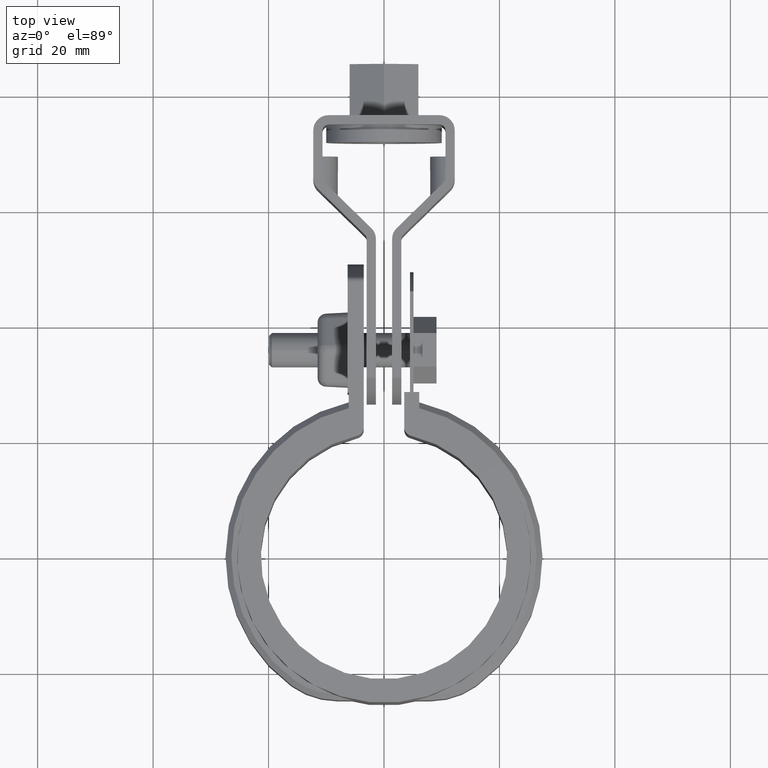
[diagram: clean part render]
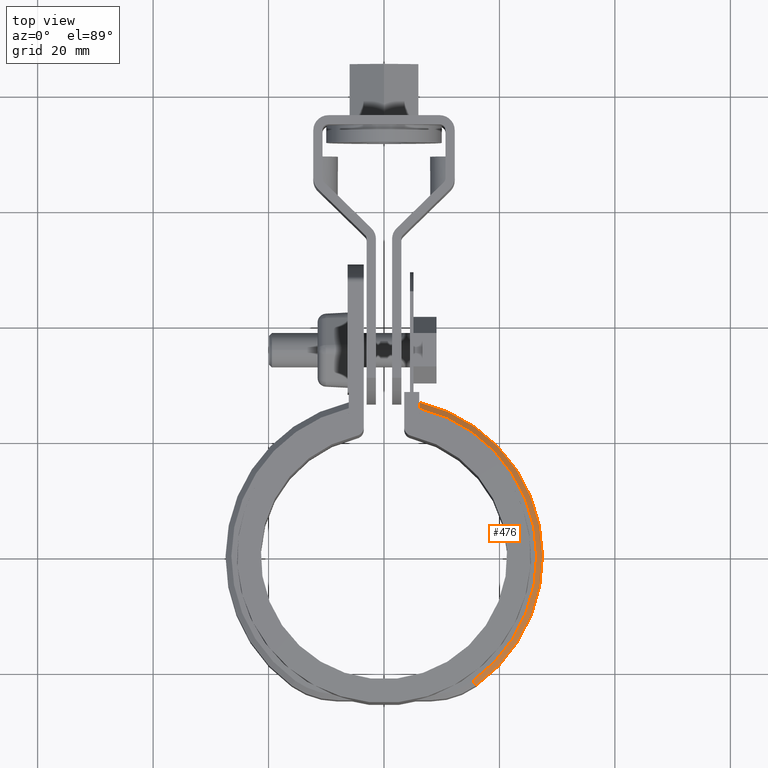
[diagram: same view with one face highlighted and labeled with its STEP entity id]
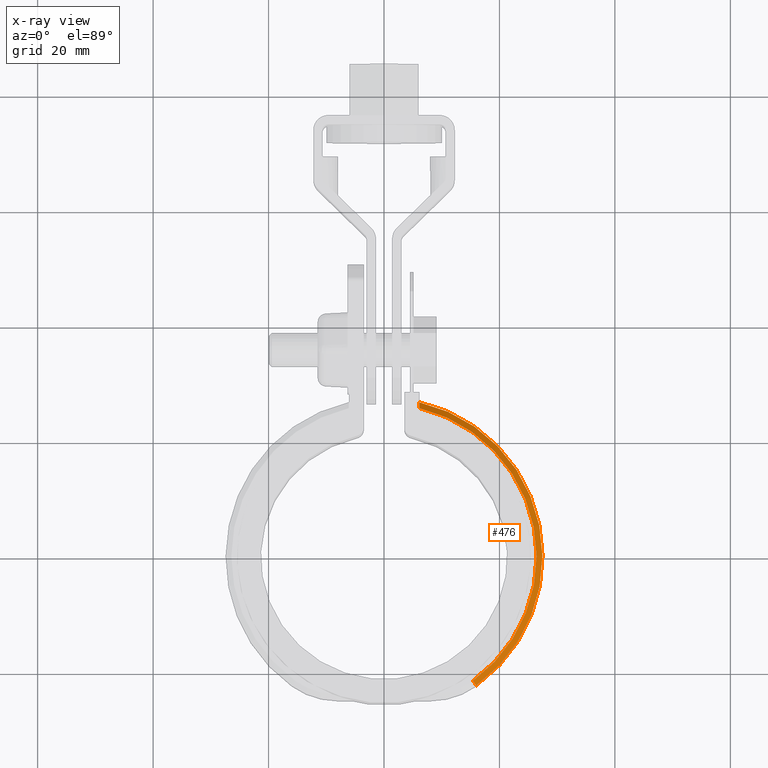
[diagram: x-ray of the same camera — body ghosted, the highlighted face saturated]
A machine part, top view. The second image highlights one B-rep face of the part: STEP entity #476.
The next image is the same camera in x-ray: the body ghosted, the highlighted face saturated — about 0% of this face is hidden behind the body in this view.
In plain terms, the highlighted conical surface has half-angle 45 deg.
Its self-contained STEP definition (entity closure, byte-faithful):
#476 = ADVANCED_FACE( '', ( #961 ), #962, .T. );
#961 = FACE_OUTER_BOUND( '', #2102, .T. );
#962 = CONICAL_SURFACE( '', #2103, 27.4450000000000, 0.785398163397448 );
#2102 = EDGE_LOOP( '', ( #4904, #4905, #4906, #4907 ) );
#2103 = AXIS2_PLACEMENT_3D( '', #4908, #4909, #4910 );
#4904 = ORIENTED_EDGE( '', *, *, #7369, .F. );
#4905 = ORIENTED_EDGE( '', *, *, #7399, .F. );
#4906 = ORIENTED_EDGE( '', *, *, #7346, .F. );
#4907 = ORIENTED_EDGE( '', *, *, #7397, .F. );
#4908 = CARTESIAN_POINT( '', ( -8.67361737988404E-016, -3.46944695195361E-015, -6.00000000000000 ) );
#4909 = DIRECTION( '', ( 0.000000000000000, 0.000000000000000, -1.00000000000000 ) );
#4910 = DIRECTION( '', ( -1.00000000000000, 0.000000000000000, 0.000000000000000 ) );
#7346 = EDGE_CURVE( '', #8557, #8559, #8560, .T. );
#7369 = EDGE_CURVE( '', #8599, #8601, #8602, .T. );
#7397 = EDGE_CURVE( '', #8601, #8557, #8643, .F. );
#7399 = EDGE_CURVE( '', #8559, #8599, #8645, .T. );
#8557 = VERTEX_POINT( '', #12750 );
#8559 = VERTEX_POINT( '', #12752 );
#8560 = LINE( '', #12753, #12754 );
#8599 = VERTEX_POINT( '', #12812 );
#8601 = VERTEX_POINT( '', #12815 );
#8602 = B_SPLINE_CURVE_WITH_KNOTS( '', 3, ( #12816, #12817, #12818, #12819 ), .UNSPECIFIED., .F., .F., ( 4, 4 ), ( 0.000000000000000, 0.00143319236465072 ), .UNSPECIFIED. );
#8643 = CIRCLE( '', #12884, 27.4450000000000 );
#8645 = CIRCLE( '', #12887, 26.4450000000000 );
#12750 = CARTESIAN_POINT( '', ( 15.9691081303572, -22.3207439508848, -6.00000000000000 ) );
#12752 = CARTESIAN_POINT( '', ( 15.3872495721368, -21.5074539544962, -5.00000000000000 ) );
#12753 = CARTESIAN_POINT( '', ( 15.9691081303572, -22.3207439508848, -6.00000000000000 ) );
#12754 = VECTOR( '', #14711, 1000.00000000000 );
#12812 = CARTESIAN_POINT( '', ( 6.10000000000000, 25.7318484567277, -5.00000000000000 ) );
#12815 = CARTESIAN_POINT( '', ( 6.10000000000000, 26.7585131313382, -6.00000000000000 ) );
#12816 = CARTESIAN_POINT( '', ( 6.10000000000000, 25.7318484567277, -5.00000000000000 ) );
#12817 = CARTESIAN_POINT( '', ( 6.10000000000000, 26.0742402876680, -5.33315843095395 ) );
#12818 = CARTESIAN_POINT( '', ( 6.10000000000001, 26.4164555659505, -5.66649838385494 ) );
#12819 = CARTESIAN_POINT( '', ( 6.10000000000001, 26.7585131313382, -6.00000000000000 ) );
#12884 = AXIS2_PLACEMENT_3D( '', #14792, #14793, #14794 );
#12887 = AXIS2_PLACEMENT_3D( '', #14796, #14797, #14798 );
#14711 = DIRECTION( '', ( -0.411436132209030, 0.575082871517553, 0.707106781186547 ) );
#14792 = CARTESIAN_POINT( '', ( -8.67361737988404E-016, -3.46944695195361E-015, -6.00000000000000 ) );
#14793 = DIRECTION( '', ( 0.000000000000000, 0.000000000000000, 1.00000000000000 ) );
#14794 = DIRECTION( '', ( 1.00000000000000, 0.000000000000000, 0.000000000000000 ) );
#14796 = CARTESIAN_POINT( '', ( -8.67361737988404E-016, -3.46944695195361E-015, -5.00000000000000 ) );
#14797 = DIRECTION( '', ( 0.000000000000000, 0.000000000000000, 1.00000000000000 ) );
#14798 = DIRECTION( '', ( 1.00000000000000, 0.000000000000000, 0.000000000000000 ) );